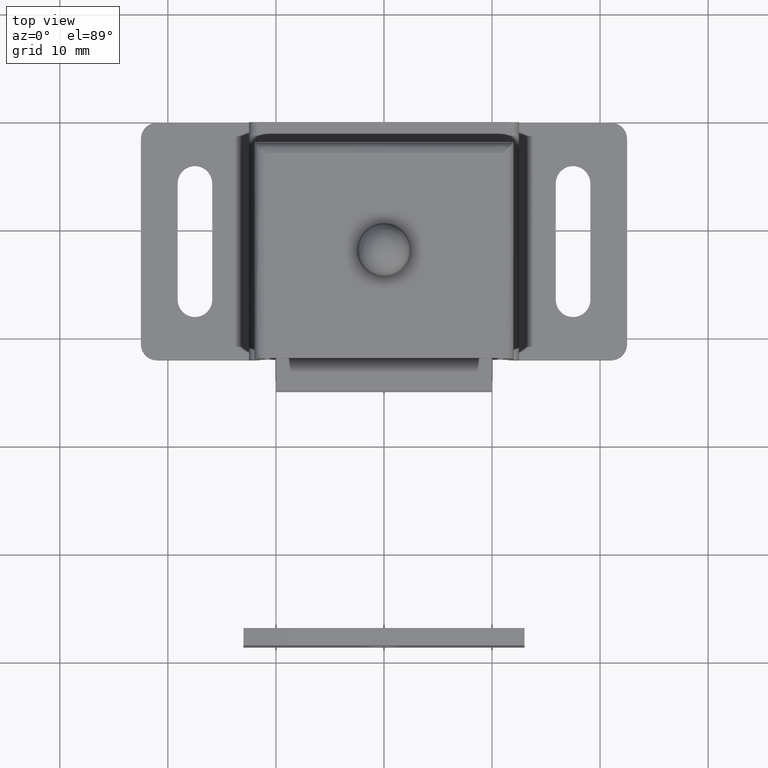
[diagram: clean part render]
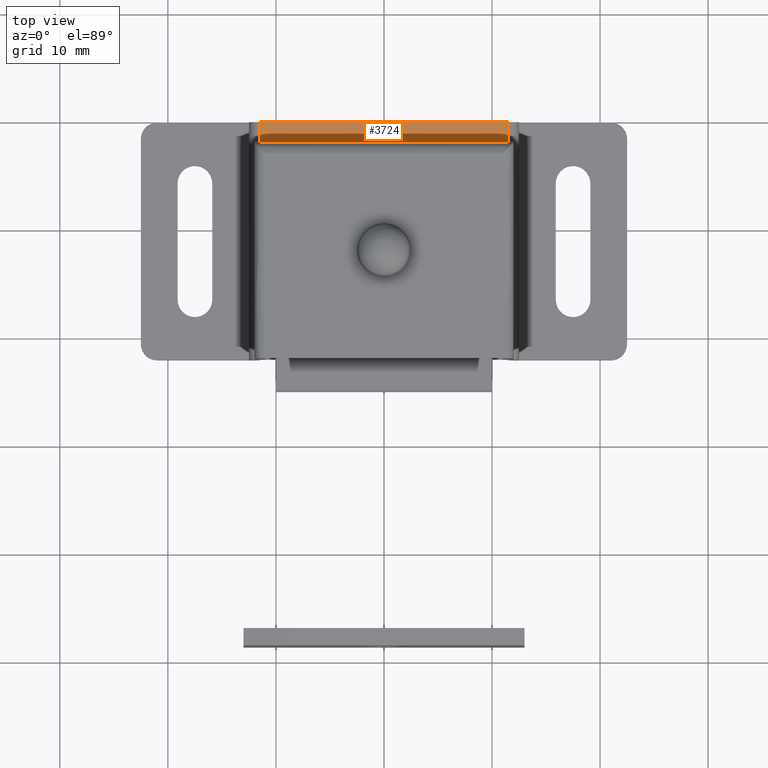
[diagram: same view with one face highlighted and labeled with its STEP entity id]
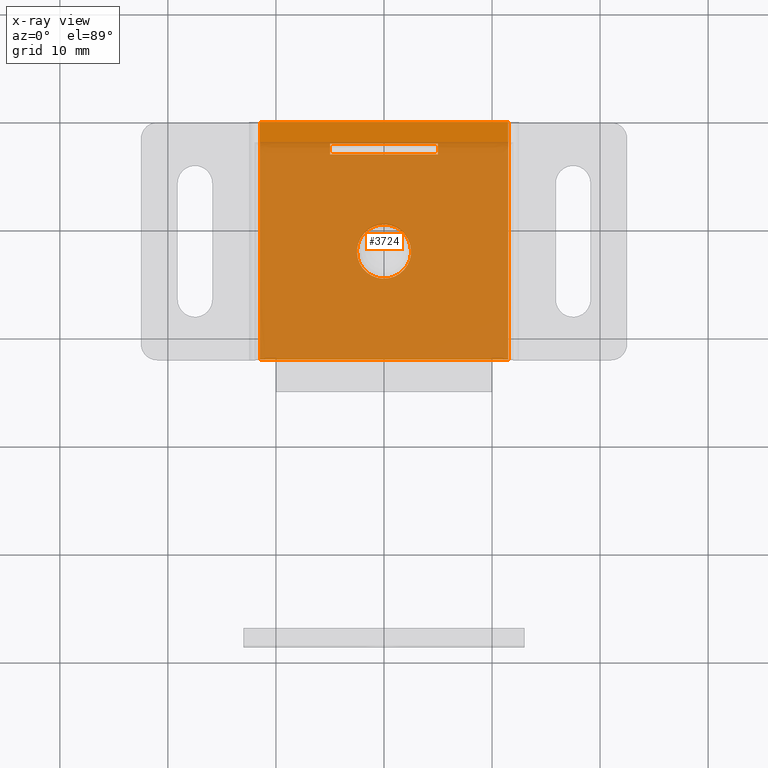
[diagram: x-ray of the same camera — body ghosted, the highlighted face saturated]
A machine part, top view. The second image highlights one B-rep face of the part: STEP entity #3724.
The next image is the same camera in x-ray: the body ghosted, the highlighted face saturated — about 90% of this face is hidden behind the body in this view.
In plain terms, the highlighted face is a freeform B-spline surface patch.
Its self-contained STEP definition (entity closure, byte-faithful):
#3200=CARTESIAN_POINT('',(-0.152621348855622,-14.495336996053540,4.0));
#3201=VERTEX_POINT('',#3200);
#3202=CARTESIAN_POINT('',(2.500000000000001,-12.0,4.0));
#3203=VERTEX_POINT('',#3202);
#3204=CARTESIAN_POINT('',(-0.152621348855622,-14.495336996053537,4.000000000000001));
#3205=CARTESIAN_POINT('',(-0.076381908255737,-14.500000000000004,4.000000000000001));
#3206=CARTESIAN_POINT('',(1.469528E-015,-14.500000000000000,4.0));
#3207=CARTESIAN_POINT('',(2.500000000000001,-14.500000000000000,4.000000000000000));
#3208=CARTESIAN_POINT('',(2.500000000000001,-12.0,4.0));
#3216=(BOUNDED_CURVE()B_SPLINE_CURVE(2,(#3204,#3205,#3206,#3207,#3208),.UNSPECIFIED.,.F.,.U.)B_SPLINE_CURVE_WITH_KNOTS((3,2,3),(0.239332962240690,0.250000000000000,0.500000000000000),.UNSPECIFIED.)CURVE()GEOMETRIC_REPRESENTATION_ITEM()RATIONAL_B_SPLINE_CURVE((0.976072041670463,0.987502787901885,1.0,0.707106781186548,1.0))REPRESENTATION_ITEM(''));
#3217=EDGE_CURVE('',#3201,#3203,#3216,.T.);
#3219=CARTESIAN_POINT('',(0.152621348855625,-9.504663003946462,4.0));
#3220=VERTEX_POINT('',#3219);
#3221=CARTESIAN_POINT('',(2.500000000000001,-12.0,4.0));
#3222=CARTESIAN_POINT('',(2.500000000000001,-9.648234832753211,4.000000000000000));
#3223=CARTESIAN_POINT('',(0.152621348855624,-9.504663003946465,4.0));
#3231=(BOUNDED_CURVE()B_SPLINE_CURVE(2,(#3221,#3222,#3223),.UNSPECIFIED.,.F.,.U.)B_SPLINE_CURVE_WITH_KNOTS((3,3),(0.500000000000000,0.739332962240690),.UNSPECIFIED.)CURVE()GEOMETRIC_REPRESENTATION_ITEM()RATIONAL_B_SPLINE_CURVE((1.0,0.719603993284663,0.976072041670463))REPRESENTATION_ITEM(''));
#3232=EDGE_CURVE('',#3203,#3220,#3231,.T.);
#3299=CARTESIAN_POINT('',(-2.499999999999999,-12.0,4.0));
#3300=VERTEX_POINT('',#3299);
#3301=CARTESIAN_POINT('',(-2.499999999999999,-12.0,4.0));
#3302=CARTESIAN_POINT('',(-2.499999999999998,-14.351765167246793,4.0));
#3303=CARTESIAN_POINT('',(-0.152621348855622,-14.495336996053537,4.000000000000001));
#3311=(BOUNDED_CURVE()B_SPLINE_CURVE(2,(#3301,#3302,#3303),.UNSPECIFIED.,.F.,.U.)B_SPLINE_CURVE_WITH_KNOTS((3,3),(0.0,0.239332962240690),.UNSPECIFIED.)CURVE()GEOMETRIC_REPRESENTATION_ITEM()RATIONAL_B_SPLINE_CURVE((1.0,0.719603993284663,0.976072041670463))REPRESENTATION_ITEM(''));
#3312=EDGE_CURVE('',#3300,#3201,#3311,.T.);
#3346=CARTESIAN_POINT('',(0.152621348855624,-9.504663003946465,4.0));
#3347=CARTESIAN_POINT('',(0.076381908255740,-9.500000000000000,4.0));
#3348=CARTESIAN_POINT('',(1.469528E-015,-9.500000000000000,4.0));
#3349=CARTESIAN_POINT('',(-2.499999999999999,-9.500000000000000,4.000000000000000));
#3350=CARTESIAN_POINT('',(-2.499999999999999,-12.0,4.0));
#3358=(BOUNDED_CURVE()B_SPLINE_CURVE(2,(#3346,#3347,#3348,#3349,#3350),.UNSPECIFIED.,.F.,.U.)B_SPLINE_CURVE_WITH_KNOTS((3,2,3),(0.739332962240690,0.750000000000000,1.0),.UNSPECIFIED.)CURVE()GEOMETRIC_REPRESENTATION_ITEM()RATIONAL_B_SPLINE_CURVE((0.976072041670463,0.987502787901885,1.0,0.707106781186548,1.0))REPRESENTATION_ITEM(''));
#3359=EDGE_CURVE('',#3220,#3300,#3358,.T.);
#3369=CARTESIAN_POINT('',(5.0,-3.0,4.0));
#3370=VERTEX_POINT('',#3369);
#3371=CARTESIAN_POINT('',(5.0,-2.0,4.0));
#3372=VERTEX_POINT('',#3371);
#3373=CARTESIAN_POINT('',(5.0,-3.0,4.0));
#3374=CARTESIAN_POINT('',(5.0,-2.0,4.0));
#3375=QUASI_UNIFORM_CURVE('',1,(#3373,#3374),.UNSPECIFIED.,.F.,.U.);
#3376=EDGE_CURVE('',#3370,#3372,#3375,.T.);
#3405=CARTESIAN_POINT('',(-5.0,-3.0,4.0));
#3406=VERTEX_POINT('',#3405);
#3407=CARTESIAN_POINT('',(-5.0,-3.0,4.0));
#3408=CARTESIAN_POINT('',(5.0,-3.0,4.0));
#3409=QUASI_UNIFORM_CURVE('',1,(#3407,#3408),.UNSPECIFIED.,.F.,.U.);
#3410=EDGE_CURVE('',#3406,#3370,#3409,.T.);
#3433=CARTESIAN_POINT('',(-5.0,-2.0,4.0));
#3434=VERTEX_POINT('',#3433);
#3435=CARTESIAN_POINT('',(-5.0,-2.0,4.0));
#3436=CARTESIAN_POINT('',(-5.0,-3.0,4.0));
#3437=QUASI_UNIFORM_CURVE('',1,(#3435,#3436),.UNSPECIFIED.,.F.,.U.);
#3438=EDGE_CURVE('',#3434,#3406,#3437,.T.);
#3461=CARTESIAN_POINT('',(5.0,-2.0,4.0));
#3462=CARTESIAN_POINT('',(-5.0,-2.0,4.0));
#3463=QUASI_UNIFORM_CURVE('',1,(#3461,#3462),.UNSPECIFIED.,.F.,.U.);
#3464=EDGE_CURVE('',#3372,#3434,#3463,.T.);
#3677=CARTESIAN_POINT('',(-12.648849805571549,-23.098899957359730,4.0));
#3678=CARTESIAN_POINT('',(12.648847422479539,-23.098899957359730,4.0));
#3679=CARTESIAN_POINT('',(-12.648849805571549,1.098900547445715,4.0));
#3680=CARTESIAN_POINT('',(12.648847422479539,1.098900547445715,4.0));
#3681=B_SPLINE_SURFACE_WITH_KNOTS('',1,1,((#3677,#3679),(#3678,#3680)),.UNSPECIFIED.,.F.,.F.,.U.,(2,2),(2,2),(0.0,25.297697228051089),(0.0,24.197800504805450),.UNSPECIFIED.);
#3682=CARTESIAN_POINT('',(11.499997000000000,-22.0,4.0));
#3683=VERTEX_POINT('',#3682);
#3684=CARTESIAN_POINT('',(-11.500000000000000,-22.0,4.0));
#3685=VERTEX_POINT('',#3684);
#3686=CARTESIAN_POINT('',(11.499997000000000,-22.0,4.0));
#3687=CARTESIAN_POINT('',(-11.500000000000000,-22.0,4.0));
#3688=QUASI_UNIFORM_CURVE('',1,(#3686,#3687),.UNSPECIFIED.,.F.,.U.);
#3689=EDGE_CURVE('',#3683,#3685,#3688,.T.);
#3690=ORIENTED_EDGE('',*,*,#3689,.F.);
#3691=CARTESIAN_POINT('',(11.499997000000000,0.0,4.0));
#3692=VERTEX_POINT('',#3691);
#3693=CARTESIAN_POINT('',(11.499997000000000,-22.0,4.0));
#3694=CARTESIAN_POINT('',(11.499997000000000,0.0,4.0));
#3695=QUASI_UNIFORM_CURVE('',1,(#3693,#3694),.UNSPECIFIED.,.F.,.U.);
#3696=EDGE_CURVE('',#3683,#3692,#3695,.T.);
#3697=ORIENTED_EDGE('',*,*,#3696,.T.);
#3698=CARTESIAN_POINT('',(-11.500000000000000,0.0,4.0));
#3699=VERTEX_POINT('',#3698);
#3700=CARTESIAN_POINT('',(11.499997000000000,0.0,4.0));
#3701=CARTESIAN_POINT('',(-11.500000000000000,0.0,4.0));
#3702=QUASI_UNIFORM_CURVE('',1,(#3700,#3701),.UNSPECIFIED.,.F.,.U.);
#3703=EDGE_CURVE('',#3692,#3699,#3702,.T.);
#3704=ORIENTED_EDGE('',*,*,#3703,.T.);
#3705=CARTESIAN_POINT('',(-11.500000000000000,0.0,4.0));
#3706=CARTESIAN_POINT('',(-11.500000000000000,-22.0,4.0));
#3707=QUASI_UNIFORM_CURVE('',1,(#3705,#3706),.UNSPECIFIED.,.F.,.U.);
#3708=EDGE_CURVE('',#3699,#3685,#3707,.T.);
#3709=ORIENTED_EDGE('',*,*,#3708,.T.);
#3710=EDGE_LOOP('',(#3690,#3697,#3704,#3709));
#3711=FACE_OUTER_BOUND('',#3710,.T.);
#3712=ORIENTED_EDGE('',*,*,#3464,.F.);
#3713=ORIENTED_EDGE('',*,*,#3376,.F.);
#3714=ORIENTED_EDGE('',*,*,#3410,.F.);
#3715=ORIENTED_EDGE('',*,*,#3438,.F.);
#3716=EDGE_LOOP('',(#3712,#3713,#3714,#3715));
#3717=FACE_BOUND('',#3716,.T.);
#3718=ORIENTED_EDGE('',*,*,#3232,.F.);
#3719=ORIENTED_EDGE('',*,*,#3217,.F.);
#3720=ORIENTED_EDGE('',*,*,#3312,.F.);
#3721=ORIENTED_EDGE('',*,*,#3359,.F.);
#3722=EDGE_LOOP('',(#3718,#3719,#3720,#3721));
#3723=FACE_BOUND('',#3722,.T.);
#3724=ADVANCED_FACE('',(#3711,#3717,#3723),#3681,.T.);